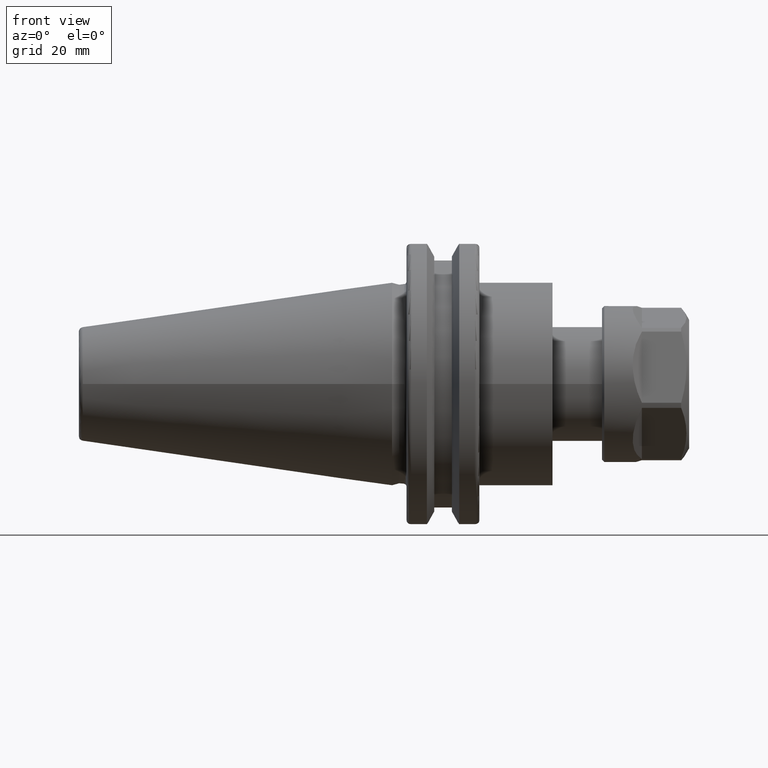
[diagram: clean part render]
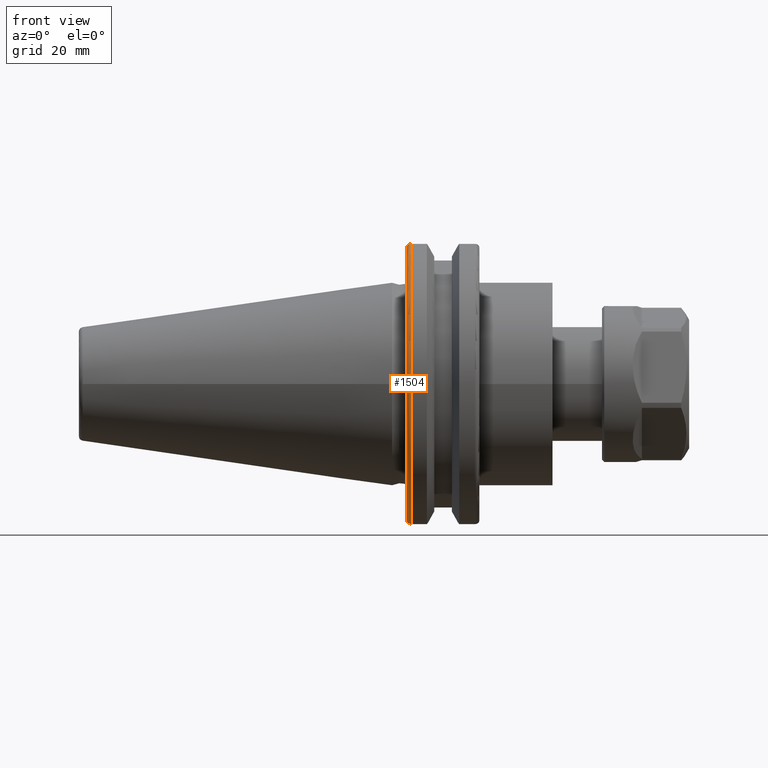
[diagram: same view with one face highlighted and labeled with its STEP entity id]
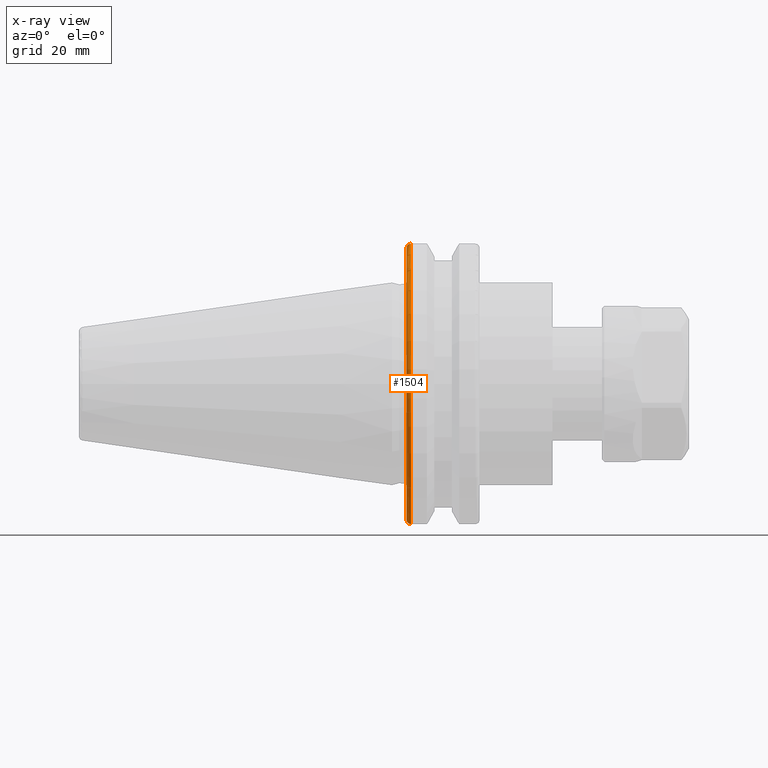
[diagram: x-ray of the same camera — body ghosted, the highlighted face saturated]
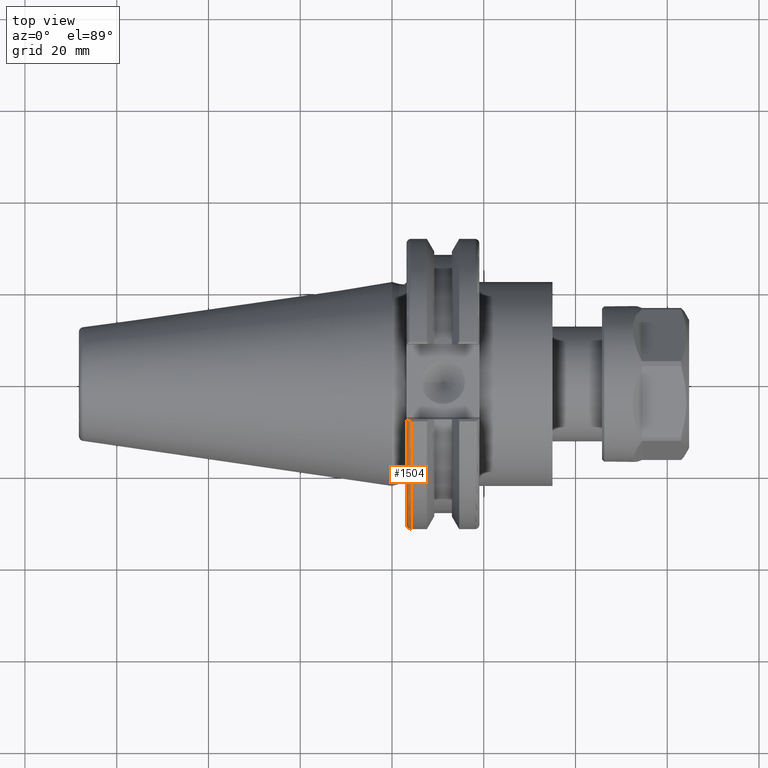
[diagram: same view with one face highlighted and labeled with its STEP entity id]
A machine part, front view. The second image highlights one B-rep face of the part: STEP entity #1504.
The next image is the same camera in x-ray: the body ghosted, the highlighted face saturated — about 0% of this face is hidden behind the body in this view.
A second angle (top view) of the same face is appended — the face is thin or edge-on in the first view.
In plain terms, the highlighted toroidal blend (fillet) surface has major radius 30.75 mm and minor (blend) radius 1 mm.
Its self-contained STEP definition (entity closure, byte-faithful):
#100=B_SPLINE_CURVE_WITH_KNOTS('',3,(#2488,#2489,#2490,#2491,#2492,#2493),
 .UNSPECIFIED.,.F.,.F.,(4,2,4),(0.0977210450333167,0.111963554372601,0.150804064902975),
 .UNSPECIFIED.);
#101=B_SPLINE_CURVE_WITH_KNOTS('',3,(#2530,#2531,#2532,#2533,#2534,#2535),
 .UNSPECIFIED.,.F.,.F.,(4,2,4),(0.452741154494498,0.491581665024872,0.505824174364157),
 .UNSPECIFIED.);
#102=B_SPLINE_CURVE_WITH_KNOTS('',3,(#2539,#2540,#2541,#2542,#2543,#2544,
#2545,#2546),.UNSPECIFIED.,.F.,.F.,(4,2,2,4),(-0.104180282751877,-0.0729784742461442,
-0.0343524753874977,0.),.UNSPECIFIED.);
#103=B_SPLINE_CURVE_WITH_KNOTS('',3,(#2549,#2550,#2551,#2552,#2553,#2554,
#2555,#2556),.UNSPECIFIED.,.F.,.F.,(4,2,2,4),(0.,0.0343524753874981,0.0729784742461436,
0.104180282751876),.UNSPECIFIED.);
#110=TOROIDAL_SURFACE('',#1693,30.75,1.);
#212=FACE_OUTER_BOUND('',#307,.T.);
#307=EDGE_LOOP('',(#1152,#1153,#1154,#1155,#1156,#1157));
#601=CIRCLE('',#1678,30.75);
#608=CIRCLE('',#1694,31.75);
#675=VERTEX_POINT('',#2332);
#676=VERTEX_POINT('',#2333);
#716=VERTEX_POINT('',#2487);
#729=VERTEX_POINT('',#2528);
#730=VERTEX_POINT('',#2538);
#731=VERTEX_POINT('',#2547);
#829=EDGE_CURVE('',#675,#676,#601,.T.);
#877=EDGE_CURVE('',#716,#675,#100,.T.);
#892=EDGE_CURVE('',#676,#729,#101,.T.);
#894=EDGE_CURVE('',#729,#730,#102,.T.);
#895=EDGE_CURVE('',#730,#731,#608,.T.);
#896=EDGE_CURVE('',#731,#716,#103,.T.);
#1152=ORIENTED_EDGE('',*,*,#894,.T.);
#1153=ORIENTED_EDGE('',*,*,#895,.T.);
#1154=ORIENTED_EDGE('',*,*,#896,.T.);
#1155=ORIENTED_EDGE('',*,*,#877,.T.);
#1156=ORIENTED_EDGE('',*,*,#829,.T.);
#1157=ORIENTED_EDGE('',*,*,#892,.T.);
#1504=ADVANCED_FACE('',(#212),#110,.T.);
#1678=AXIS2_PLACEMENT_3D('',#2334,#1895,#1896);
#1693=AXIS2_PLACEMENT_3D('',#2537,#1965,#1966);
#1694=AXIS2_PLACEMENT_3D('',#2548,#1967,#1968);
#1895=DIRECTION('center_axis',(1.,0.,0.));
#1896=DIRECTION('ref_axis',(0.,-1.,1.60812264967664E-16));
#1965=DIRECTION('center_axis',(1.,0.,0.));
#1966=DIRECTION('ref_axis',(0.,0.,-1.));
#1967=DIRECTION('center_axis',(-1.,0.,0.));
#1968=DIRECTION('ref_axis',(0.,-1.,1.60812264967664E-16));
#2332=CARTESIAN_POINT('',(3.175,-8.18999999999999,29.6392712461019));
#2333=CARTESIAN_POINT('',(3.175,-8.19,-29.6392712461019));
#2334=CARTESIAN_POINT('Origin',(3.175,0.,0.));
#2487=CARTESIAN_POINT('',(3.31912772509028,-8.19,30.1755016258903));
#2488=CARTESIAN_POINT('Ctrl Pts',(3.31912772509028,-8.19,30.1755016258903));
#2489=CARTESIAN_POINT('Ctrl Pts',(3.29318362718666,-8.19,30.131014531546));
#2490=CARTESIAN_POINT('Ctrl Pts',(3.27103565282437,-8.19,30.0852355256475));
#2491=CARTESIAN_POINT('Ctrl Pts',(3.20451443291695,-8.19,29.9212724384851));
#2492=CARTESIAN_POINT('Ctrl Pts',(3.175,-8.19,29.7687396145364));
#2493=CARTESIAN_POINT('Ctrl Pts',(3.175,-8.19,29.6392712461019));
#2528=CARTESIAN_POINT('',(3.31912772509028,-8.19,-30.1755016258903));
#2530=CARTESIAN_POINT('Ctrl Pts',(3.175,-8.19,-29.6392712461018));
#2531=CARTESIAN_POINT('Ctrl Pts',(3.175,-8.19,-29.7687396145364));
#2532=CARTESIAN_POINT('Ctrl Pts',(3.20451443291695,-8.19,-29.9212724384851));
#2533=CARTESIAN_POINT('Ctrl Pts',(3.27103565282437,-8.19,-30.0852355256475));
#2534=CARTESIAN_POINT('Ctrl Pts',(3.29318362718666,-8.19,-30.131014531546));
#2535=CARTESIAN_POINT('Ctrl Pts',(3.31912772509028,-8.19,-30.1755016258903));
#2537=CARTESIAN_POINT('Origin',(4.175,0.,0.));
#2538=CARTESIAN_POINT('',(4.175,-8.67204822802685,-30.5427254764662));
#2539=CARTESIAN_POINT('Ctrl Pts',(3.31912772509028,-8.19,-30.1755016258903));
#2540=CARTESIAN_POINT('Ctrl Pts',(3.36755369570113,-8.27036828330781,-30.2367261024977));
#2541=CARTESIAN_POINT('Ctrl Pts',(3.43232973376814,-8.34909446036477,-30.2966996242308));
#2542=CARTESIAN_POINT('Ctrl Pts',(3.58532758094931,-8.48862804755884,-30.4029961692546));
#2543=CARTESIAN_POINT('Ctrl Pts',(3.70655857052286,-8.56482138642532,-30.4610401774263));
#2544=CARTESIAN_POINT('Ctrl Pts',(3.92668295662254,-8.6471881193939,-30.5237870709558));
#2545=CARTESIAN_POINT('Ctrl Pts',(4.06049174870834,-8.67204822802686,-30.5427254764662));
#2546=CARTESIAN_POINT('Ctrl Pts',(4.175,-8.67204822802686,-30.5427254764662));
#2547=CARTESIAN_POINT('',(4.175,-8.67204822802685,30.5427254764662));
#2548=CARTESIAN_POINT('Origin',(4.175,0.,0.));
#2549=CARTESIAN_POINT('Ctrl Pts',(4.175,-8.67204822802686,30.5427254764662));
#2550=CARTESIAN_POINT('Ctrl Pts',(4.06049174870834,-8.67204822802686,30.5427254764662));
#2551=CARTESIAN_POINT('Ctrl Pts',(3.92668295662254,-8.64718811939389,30.5237870709558));
#2552=CARTESIAN_POINT('Ctrl Pts',(3.70655857052286,-8.56482138642532,30.4610401774263));
#2553=CARTESIAN_POINT('Ctrl Pts',(3.58532758094931,-8.48862804755884,30.4029961692546));
#2554=CARTESIAN_POINT('Ctrl Pts',(3.43232973376814,-8.34909446036478,30.2966996242308));
#2555=CARTESIAN_POINT('Ctrl Pts',(3.36755369570113,-8.2703682833078,30.2367261024977));
#2556=CARTESIAN_POINT('Ctrl Pts',(3.31912772509028,-8.19,30.1755016258903));